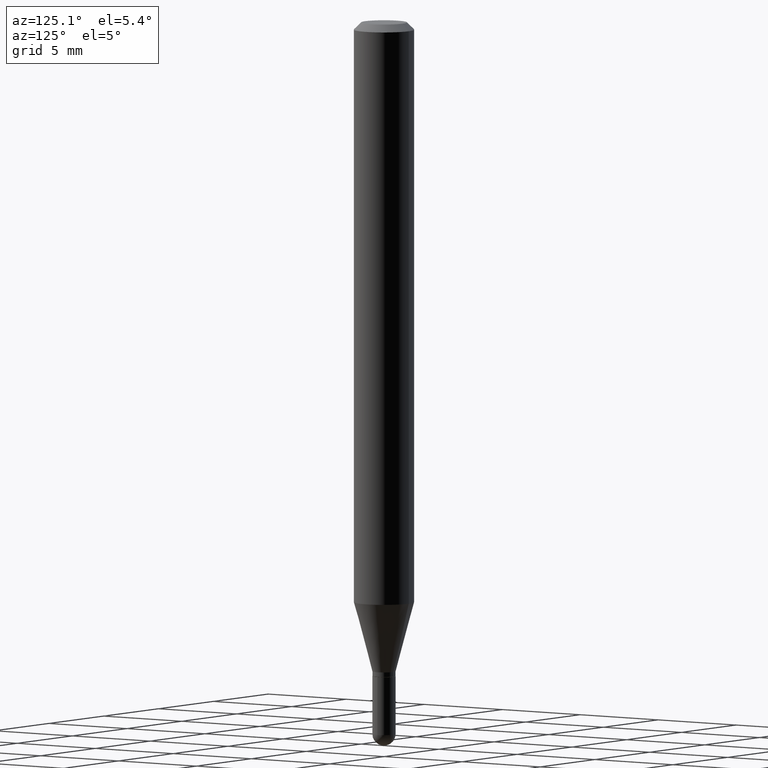
[diagram: clean part render]
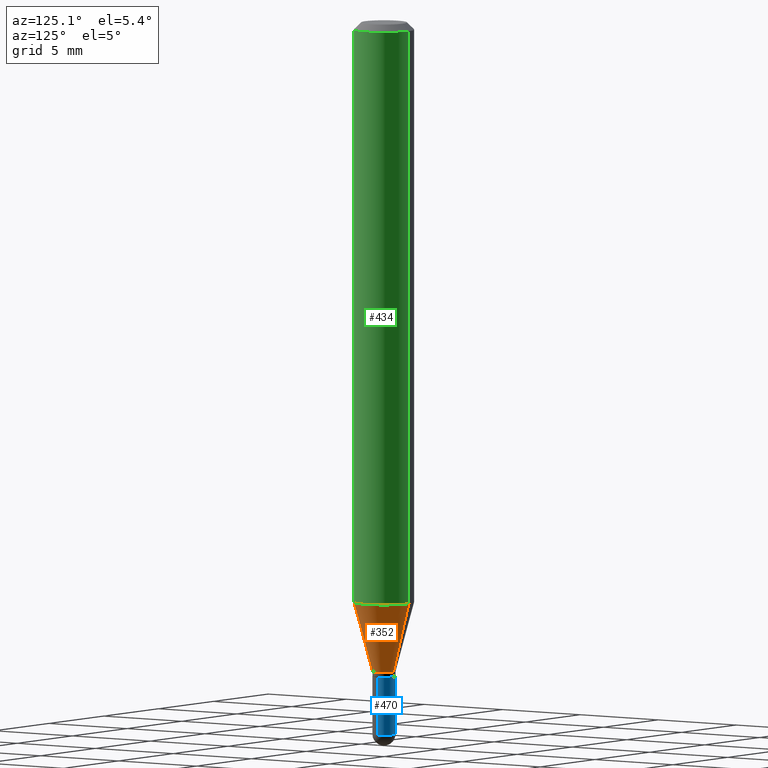
[diagram: same view with three faces highlighted in distinct colors, each labeled with its STEP entity id]
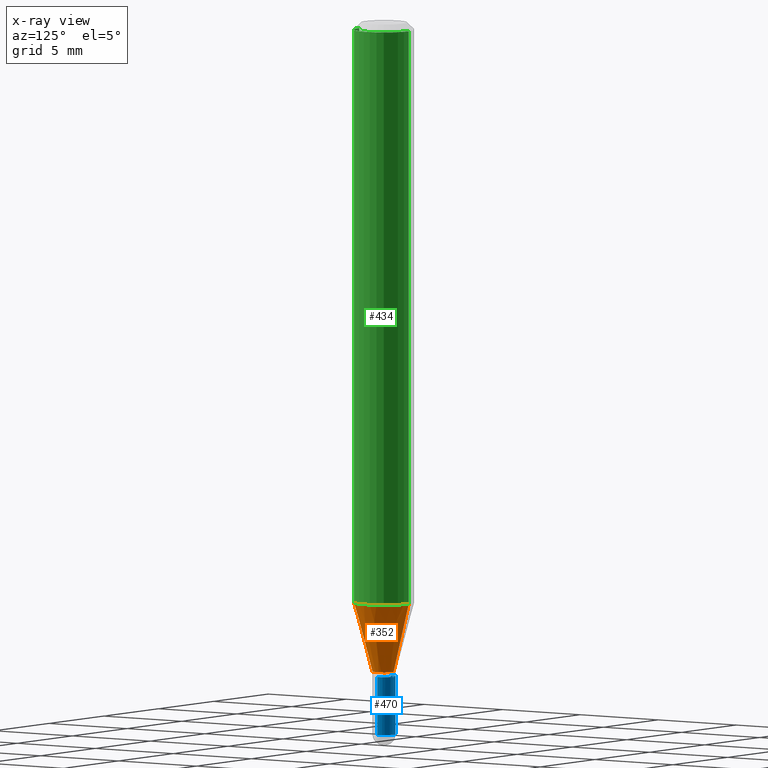
[diagram: x-ray of the same camera — body ghosted, the three highlighted faces saturated]
A machine part, auxiliary view with three faces highlighted in distinct colors.
The next image is the same camera in x-ray (body ghosted, the three faces saturated) — at least one of them is partly hidden behind the body in this view.
Their STEP definitions:

[orange] entity #352 — the highlighted conical surface has half-angle 15 deg.
#2 = DIRECTION ( 'NONE',  ( -6.982962677686265922E-15, -1.000000000000000000, 4.370956789862821150E-15 ) ) ;
#3 = EDGE_CURVE ( 'NONE', #439, #468, #250, .T. ) ;
#9 = LINE ( 'NONE', #160, #282 ) ;
#10 = AXIS2_PLACEMENT_3D ( 'NONE', #147, #219, #263 ) ;
#27 = VECTOR ( 'NONE', #382, 39.37007874015748143 ) ;
#61 = DIRECTION ( 'NONE',  ( -2.445461197207060331E-29, 3.491492235332826977E-15, 1.000000000000000000 ) ) ;
#72 = CARTESIAN_POINT ( 'NONE',  ( -4.364351673553623829E-16, -0.06250000000000421885, -1.202316043908598475 ) ) ;
#103 = ORIENTED_EDGE ( 'NONE', *, *, #200, .T. ) ;
#137 = CARTESIAN_POINT ( 'NONE',  ( 3.291590771440703350E-29, -4.699548548757984927E-15, -1.346000000000000085 ) ) ;
#147 = CARTESIAN_POINT ( 'NONE',  ( 3.291590771440703350E-29, -4.699548548757984927E-15, -1.346000000000000085 ) ) ;
#160 = CARTESIAN_POINT ( 'NONE',  ( -1.675911042644369543E-16, -0.02400000000000462527, -1.346000000000000085 ) ) ;
#164 = VERTEX_POINT ( 'NONE', #294 ) ;
#178 = LINE ( 'NONE', #499, #27 ) ;
#187 = CARTESIAN_POINT ( 'NONE',  ( 2.940217232157978499E-29, -4.197877131722955059E-15, -1.202316043908598697 ) ) ;
#195 = ORIENTED_EDGE ( 'NONE', *, *, #368, .F. ) ;
#200 = EDGE_CURVE ( 'NONE', #468, #164, #178, .T. ) ;
#209 = DIRECTION ( 'NONE',  ( -6.982962677686265133E-15, -1.000000000000000000, 0.000000000000000000 ) ) ;
#216 = CIRCLE ( 'NONE', #377, 0.06250000000000000000 ) ;
#219 = DIRECTION ( 'NONE',  ( -2.445461197207060331E-29, 3.491492235332826977E-15, 1.000000000000000000 ) ) ;
#221 = DIRECTION ( 'NONE',  ( -2.445461197207060331E-29, 3.491492235332826977E-15, 1.000000000000000000 ) ) ;
#250 = CIRCLE ( 'NONE', #406, 0.02399999999999992764 ) ;
#263 = DIRECTION ( 'NONE',  ( -6.982962677686265133E-15, -1.000000000000000000, 0.000000000000000000 ) ) ;
#282 = VECTOR ( 'NONE', #285, 39.37007874015748854 ) ;
#285 = DIRECTION ( 'NONE',  ( -1.807323732225332900E-15, -0.2588190451025185745, 0.9659258262890687563 ) ) ;
#294 = CARTESIAN_POINT ( 'NONE',  ( 4.440892098500918040E-16, 0.06249999999999577421, -1.202316043908599141 ) ) ;
#302 = VERTEX_POINT ( 'NONE', #72 ) ;
#318 = EDGE_LOOP ( 'NONE', ( #323, #103, #195, #326 ) ) ;
#323 = ORIENTED_EDGE ( 'NONE', *, *, #3, .T. ) ;
#326 = ORIENTED_EDGE ( 'NONE', *, *, #449, .F. ) ;
#352 = ADVANCED_FACE ( 'NONE', ( #507 ), #438, .T. ) ;
#361 = CARTESIAN_POINT ( 'NONE',  ( -1.675911042644369543E-16, -0.02400000000000462527, -1.346000000000000085 ) ) ;
#368 = EDGE_CURVE ( 'NONE', #302, #164, #216, .T. ) ;
#377 = AXIS2_PLACEMENT_3D ( 'NONE', #187, #221, #2 ) ;
#382 = DIRECTION ( 'NONE',  ( 1.839019923739603471E-15, 0.2588190451025254024, 0.9659258262890670910 ) ) ;
#406 = AXIS2_PLACEMENT_3D ( 'NONE', #137, #61, #209 ) ;
#409 = CARTESIAN_POINT ( 'NONE',  ( 3.073097332162742703E-16, 0.02399999999999522307, -1.346000000000000085 ) ) ;
#438 = CONICAL_SURFACE ( 'NONE', #10, 0.02399999999999992764, 0.2617993877991507401 ) ;
#439 = VERTEX_POINT ( 'NONE', #361 ) ;
#449 = EDGE_CURVE ( 'NONE', #439, #302, #9, .T. ) ;
#468 = VERTEX_POINT ( 'NONE', #409 ) ;
#499 = CARTESIAN_POINT ( 'NONE',  ( 1.705302565824563915E-16, 0.02399999999999522654, -1.346000000000000085 ) ) ;
#507 = FACE_OUTER_BOUND ( 'NONE', #318, .T. ) ;

[blue] entity #470 — the highlighted cylindrical surface (edge-blend (fillet) strip) has radius 0.6096 mm, axis along (-0, 0, 1).
#8 = EDGE_LOOP ( 'NONE', ( #115, #220, #366, #32, #365 ) ) ;
#11 = EDGE_CURVE ( 'NONE', #435, #12, #496, .T. ) ;
#12 = VERTEX_POINT ( 'NONE', #247 ) ;
#19 = DIRECTION ( 'NONE',  ( 1.000000000000000000, -6.982962677686266711E-15, 4.876176775795935232E-29 ) ) ;
#30 = CARTESIAN_POINT ( 'NONE',  ( -0.02400000000000000397, 1.705302565824240728E-16, -1.180544421661177751E-30 ) ) ;
#32 = ORIENTED_EDGE ( 'NONE', *, *, #410, .F. ) ;
#37 = DIRECTION ( 'NONE',  ( -2.445468806185136877E-29, 3.491481338843145188E-15, 1.000000000000000000 ) ) ;
#74 = EDGE_CURVE ( 'NONE', #429, #435, #437, .T. ) ;
#77 = CARTESIAN_POINT ( 'NONE',  ( -0.02400000000000000050, -4.773407319219470337E-15, -1.356000000000000316 ) ) ;
#95 = DIRECTION ( 'NONE',  ( -2.445468806185136597E-29, 3.491481338843145583E-15, 1.000000000000000000 ) ) ;
#107 = CARTESIAN_POINT ( 'NONE',  ( 0.02400000000000000397, -1.675911042644704316E-16, 1.170282426191024667E-30 ) ) ;
#112 = DIRECTION ( 'NONE',  ( -2.445468806185136877E-29, 3.491481338843145188E-15, 1.000000000000000000 ) ) ;
#115 = ORIENTED_EDGE ( 'NONE', *, *, #11, .T. ) ;
#119 = CYLINDRICAL_SURFACE ( 'NONE', #343, 0.02400000000000000397 ) ;
#128 = CARTESIAN_POINT ( 'NONE',  ( 1.705302565824607055E-16, 0.02399999999999493164, -1.475999999999999979 ) ) ;
#149 = VECTOR ( 'NONE', #112, 39.37007874015748143 ) ;
#155 = DIRECTION ( 'NONE',  ( -2.445468806185136597E-29, 3.491481338843145583E-15, 1.000000000000000000 ) ) ;
#168 = CARTESIAN_POINT ( 'NONE',  ( 0.02400000000000000050, -4.902039799735776870E-15, -1.356000000000000316 ) ) ;
#175 = AXIS2_PLACEMENT_3D ( 'NONE', #203, #95, #373 ) ;
#176 = CIRCLE ( 'NONE', #502, 0.02400000000000000050 ) ;
#203 = CARTESIAN_POINT ( 'NONE',  ( 3.609511957929261635E-29, -5.153426456132482850E-15, -1.475999999999999979 ) ) ;
#220 = ORIENTED_EDGE ( 'NONE', *, *, #379, .T. ) ;
#228 = DIRECTION ( 'NONE',  ( 1.000000000000000000, -6.982962677686251722E-15, 0.000000000000000000 ) ) ;
#247 = CARTESIAN_POINT ( 'NONE',  ( -0.02400000000000000397, -4.773407319219470337E-15, -1.475999999999999979 ) ) ;
#267 = AXIS2_PLACEMENT_3D ( 'NONE', #459, #452, #462 ) ;
#268 = CARTESIAN_POINT ( 'NONE',  ( 0.02400000000000000397, -5.111528680066364398E-15, -1.475999999999999979 ) ) ;
#271 = DIRECTION ( 'NONE',  ( -2.445468806185136597E-29, 3.491481338843145583E-15, 1.000000000000000000 ) ) ;
#278 = FACE_OUTER_BOUND ( 'NONE', #8, .T. ) ;
#293 = VECTOR ( 'NONE', #37, 39.37007874015748143 ) ;
#306 = LINE ( 'NONE', #107, #149 ) ;
#324 = CARTESIAN_POINT ( 'NONE',  ( 0.000000000000000000, 0.000000000000000000, 0.000000000000000000 ) ) ;
#343 = AXIS2_PLACEMENT_3D ( 'NONE', #324, #155, #19 ) ;
#365 = ORIENTED_EDGE ( 'NONE', *, *, #74, .T. ) ;
#366 = ORIENTED_EDGE ( 'NONE', *, *, #426, .F. ) ;
#373 = DIRECTION ( 'NONE',  ( 1.000000000000000000, -6.982962677686250144E-15, 0.000000000000000000 ) ) ;
#379 = EDGE_CURVE ( 'NONE', #12, #380, #505, .T. ) ;
#380 = VERTEX_POINT ( 'NONE', #77 ) ;
#410 = EDGE_CURVE ( 'NONE', #429, #485, #306, .T. ) ;
#426 = EDGE_CURVE ( 'NONE', #485, #380, #176, .T. ) ;
#429 = VERTEX_POINT ( 'NONE', #268 ) ;
#435 = VERTEX_POINT ( 'NONE', #128 ) ;
#437 = CIRCLE ( 'NONE', #175, 0.02400000000000000397 ) ;
#452 = DIRECTION ( 'NONE',  ( -2.445468806185136597E-29, 3.491481338843145583E-15, 1.000000000000000000 ) ) ;
#459 = CARTESIAN_POINT ( 'NONE',  ( 3.609511957929261635E-29, -5.153426456132482850E-15, -1.475999999999999979 ) ) ;
#462 = DIRECTION ( 'NONE',  ( 1.000000000000000000, -6.982962677686250144E-15, 0.000000000000000000 ) ) ;
#470 = ADVANCED_FACE ( 'NONE', ( #278 ), #119, .T. ) ;
#485 = VERTEX_POINT ( 'NONE', #168 ) ;
#496 = CIRCLE ( 'NONE', #267, 0.02400000000000000397 ) ;
#502 = AXIS2_PLACEMENT_3D ( 'NONE', #512, #271, #228 ) ;
#505 = LINE ( 'NONE', #30, #293 ) ;
#512 = CARTESIAN_POINT ( 'NONE',  ( 3.316055701187045333E-29, -4.734448695471306216E-15, -1.356000000000000316 ) ) ;

[green] entity #434 — the highlighted cylindrical surface (edge-blend (fillet) strip) has radius 1.5875 mm, axis along (-0, 0, 1).
#2 = DIRECTION ( 'NONE',  ( -6.982962677686265922E-15, -1.000000000000000000, 4.370956789862821150E-15 ) ) ;
#39 = VECTOR ( 'NONE', #121, 39.37007874015748143 ) ;
#40 = DIRECTION ( 'NONE',  ( -2.445461197207060331E-29, 3.491492235332826977E-15, 1.000000000000000000 ) ) ;
#71 = VERTEX_POINT ( 'NONE', #174 ) ;
#72 = CARTESIAN_POINT ( 'NONE',  ( -4.364351673553623829E-16, -0.06250000000000421885, -1.202316043908598475 ) ) ;
#80 = CARTESIAN_POINT ( 'NONE',  ( 0.000000000000000000, 0.000000000000000000, 0.000000000000000000 ) ) ;
#114 = CYLINDRICAL_SURFACE ( 'NONE', #446, 0.06250000000000000000 ) ;
#118 = ORIENTED_EDGE ( 'NONE', *, *, #274, .T. ) ;
#121 = DIRECTION ( 'NONE',  ( -2.445461197207060331E-29, 3.491492235332826977E-15, 1.000000000000000000 ) ) ;
#163 = DIRECTION ( 'NONE',  ( -6.982962677686265922E-15, -1.000000000000000000, 3.491492235332826977E-15 ) ) ;
#164 = VERTEX_POINT ( 'NONE', #294 ) ;
#174 = CARTESIAN_POINT ( 'NONE',  ( 4.440892098500920998E-16, 0.06249999999999993755, -0.01500000000000054588 ) ) ;
#187 = CARTESIAN_POINT ( 'NONE',  ( 2.940217232157978499E-29, -4.197877131722955059E-15, -1.202316043908598697 ) ) ;
#190 = DIRECTION ( 'NONE',  ( -2.445461197207060331E-29, 3.491492235332826977E-15, 1.000000000000000000 ) ) ;
#216 = CIRCLE ( 'NONE', #377, 0.06250000000000000000 ) ;
#221 = DIRECTION ( 'NONE',  ( -2.445461197207060331E-29, 3.491492235332826977E-15, 1.000000000000000000 ) ) ;
#224 = DIRECTION ( 'NONE',  ( -6.982962677686265922E-15, -1.000000000000000000, 3.483106191921935554E-15 ) ) ;
#233 = VECTOR ( 'NONE', #190, 39.37007874015748143 ) ;
#237 = ORIENTED_EDGE ( 'NONE', *, *, #453, .F. ) ;
#273 = DIRECTION ( 'NONE',  ( -2.445461197207060331E-29, 3.491492235332826977E-15, 1.000000000000000000 ) ) ;
#274 = EDGE_CURVE ( 'NONE', #164, #71, #353, .T. ) ;
#276 = LINE ( 'NONE', #331, #39 ) ;
#294 = CARTESIAN_POINT ( 'NONE',  ( 4.440892098500918040E-16, 0.06249999999999577421, -1.202316043908599141 ) ) ;
#302 = VERTEX_POINT ( 'NONE', #72 ) ;
#317 = CARTESIAN_POINT ( 'NONE',  ( -4.364351673553912750E-16, -0.06250000000000005551, -0.01500000000000011047 ) ) ;
#329 = AXIS2_PLACEMENT_3D ( 'NONE', #388, #40, #224 ) ;
#331 = CARTESIAN_POINT ( 'NONE',  ( -4.364351673553916201E-16, -0.06250000000000000000, 2.182182647083016860E-16 ) ) ;
#342 = EDGE_LOOP ( 'NONE', ( #482, #118, #391, #237 ) ) ;
#353 = LINE ( 'NONE', #509, #233 ) ;
#368 = EDGE_CURVE ( 'NONE', #302, #164, #216, .T. ) ;
#377 = AXIS2_PLACEMENT_3D ( 'NONE', #187, #221, #2 ) ;
#383 = EDGE_CURVE ( 'NONE', #405, #71, #465, .T. ) ;
#388 = CARTESIAN_POINT ( 'NONE',  ( 3.668191795810671124E-31, -5.237238352999354998E-17, -0.01500000000000032904 ) ) ;
#391 = ORIENTED_EDGE ( 'NONE', *, *, #383, .F. ) ;
#394 = FACE_OUTER_BOUND ( 'NONE', #342, .T. ) ;
#405 = VERTEX_POINT ( 'NONE', #317 ) ;
#434 = ADVANCED_FACE ( 'NONE', ( #394 ), #114, .T. ) ;
#446 = AXIS2_PLACEMENT_3D ( 'NONE', #80, #273, #163 ) ;
#453 = EDGE_CURVE ( 'NONE', #302, #405, #276, .T. ) ;
#465 = CIRCLE ( 'NONE', #329, 0.06250000000000000000 ) ;
#482 = ORIENTED_EDGE ( 'NONE', *, *, #368, .T. ) ;
#509 = CARTESIAN_POINT ( 'NONE',  ( 4.440892098500625669E-16, 0.06250000000000000000, -2.182182647083016860E-16 ) ) ;